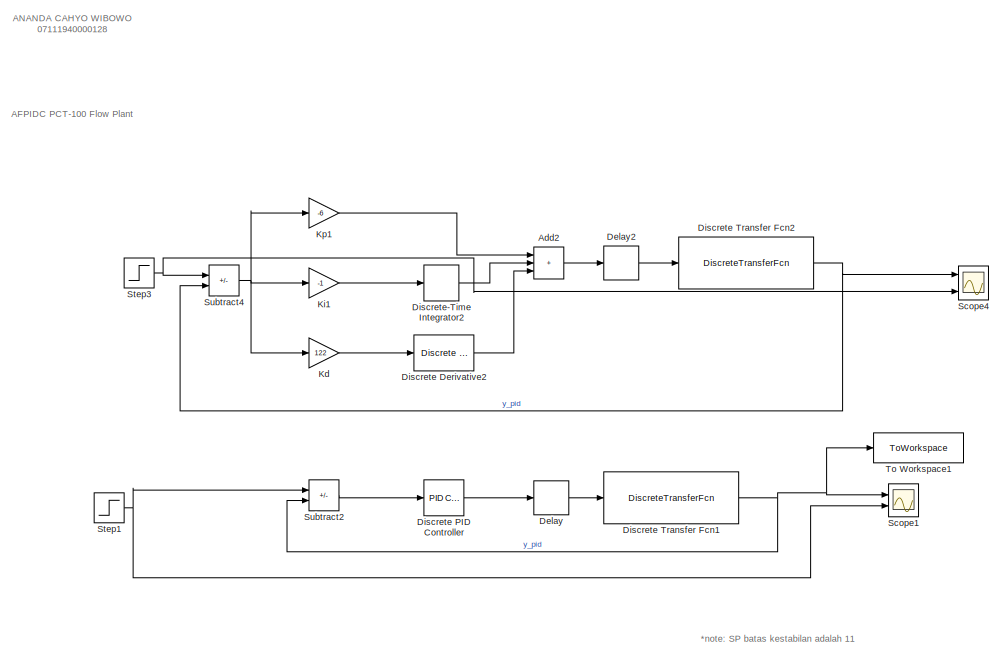
[diagram: root canvas - part 1/2, left side, full height]
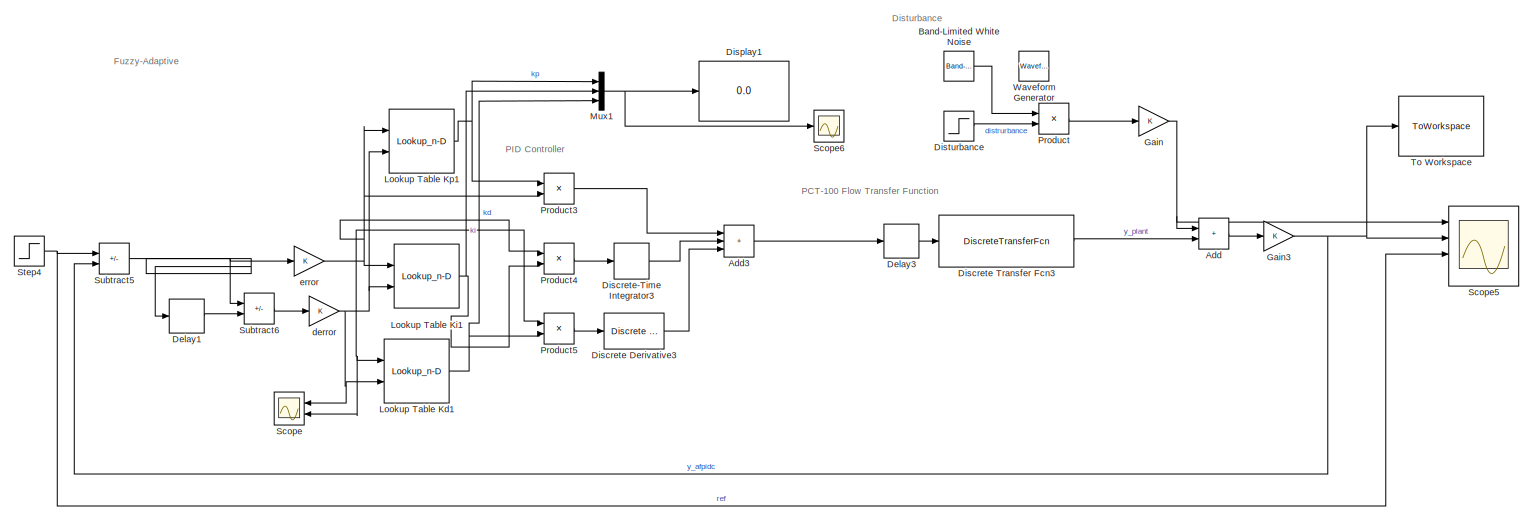
[diagram: root canvas - part 2/2, right side, full height]
MODEL slx_78fac7936a51
KIND model
CONFIG AbsTol = auto
CONFIG EnableMultiTasking = off
CONFIG FixedStep = auto
CONFIG MaxStep = auto
CONFIG MinStep = auto
CONFIG RelTol = 1e-3
CONFIG SampleTimeConstraint = Unconstrained
CONFIG SolverName = VariableStepAuto
CONFIG StartTime = 0.0
CONFIG StopTime = 15.1010
BLOCK [Sum] Add
  IconShape = rectangular
  Ports = [2, 1]
BLOCK [Sum] Add2
  IconShape = rectangular
  Inputs = +++
  Ports = [3, 1]
BLOCK [Sum] Add3
  IconShape = rectangular
  Inputs = +++
  Ports = [3, 1]
BLOCK [Reference] Band-Limited White Noise  REF=simulink/Sources/Band-Limited
White Noise
  Ports = [0, 1]
  SourceBlock = simulink/Sources/Band-Limited\nWhite Noise
  SourceProductBaseCode = SL
  SourceType = Band-Limited White Noise.
BLOCK [Delay] Delay
  DelayLength = 3
  InputPortMap = u0
  Ports = [1, 1]
  SampleTime = 0.1
BLOCK [Delay] Delay1
  DelayLength = 1
  InputPortMap = u0
  Ports = [1, 1]
  SampleTime = 0.1
BLOCK [Delay] Delay2
  DelayLength = 3
  InputPortMap = u0
  Ports = [1, 1]
  SampleTime = 0.1
BLOCK [Delay] Delay3
  DelayLength = 3
  InputPortMap = u0
  Ports = [1, 1]
  SampleTime = 0.1
BLOCK [Reference] Discrete Derivative2  REF=simulink/Discrete/Discrete Derivative
  Ports = [1, 1]
  SourceBlock = simulink/Discrete/Discrete Derivative
  SourceProductBaseCode = SL
  SourceType = Discrete Derivative
BLOCK [Reference] Discrete Derivative3  REF=simulink/Discrete/Discrete Derivative
  Ports = [1, 1]
  SourceBlock = simulink/Discrete/Discrete Derivative
  SourceProductBaseCode = SL
  SourceType = Discrete Derivative
BLOCK [Reference] Discrete PID Controller  REF=pid_lib/PID Controller
  Ports = [1, 1]
  SourceBlock = pid_lib/PID Controller
  SourceProductBaseCode = SL
  SourceType = PID 1dof
BLOCK [DiscreteTransferFcn] Discrete Transfer Fcn1
  Denominator = [1 -1.537 0.5996]
  InputPortMap = u0
  Numerator = [0.001733]
  Ports = [1, 1]
  SampleTime = 0.1
BLOCK [DiscreteTransferFcn] Discrete Transfer Fcn2
  Denominator = [1 -1.537 0.5996]
  InputPortMap = u0
  Numerator = [0.001733]
  Ports = [1, 1]
  SampleTime = 0.1
BLOCK [DiscreteTransferFcn] Discrete Transfer Fcn3
  Denominator = [1 -1.537 0.5996]
  InputPortMap = u0
  Numerator = [0.001733]
  Ports = [1, 1]
  SampleTime = 0.1
BLOCK [DiscreteIntegrator] Discrete-Time Integrator2
  ICPrevOutput = DiscIntNeverNeededParam
  ICPrevScaledInput = DiscIntNeverNeededParam
  InitialConditionSetting = Auto
  Ports = [1, 1]
  SampleTime = 0.1
BLOCK [DiscreteIntegrator] Discrete-Time Integrator3
  ICPrevOutput = DiscIntNeverNeededParam
  ICPrevScaledInput = DiscIntNeverNeededParam
  InitialConditionSetting = Auto
  Ports = [1, 1]
  SampleTime = 0.1
BLOCK [Display] Display1
  Decimation = 1
  Ports = [1]
BLOCK [Step] Disturbance
  After = 0.5
  SampleTime = 0
  Time = 0
BLOCK [Gain] Gain
BLOCK [Gain] Gain3
BLOCK [Gain] Kd
  Gain = 122
BLOCK [Gain] Ki1
  Gain = -1
BLOCK [Gain] Kp1
  Gain = -6
BLOCK [Lookup_n-D] Lookup Table Kd1
  BreakpointsForDimension1 = E_kd(1,:)
  BreakpointsForDimension2 = dE_kd(:,1)
  InputPortMap = u0,u1
  InternalRulePriority = Speed
  Ports = [2, 1]
  RndMeth = Simplest
  Table = U_kd
BLOCK [Lookup_n-D] Lookup Table Ki1
  BreakpointsForDimension1 = E_ki(1,:)
  BreakpointsForDimension2 = dE_ki(:,1)
  InputPortMap = u0,u1
  InternalRulePriority = Speed
  Ports = [2, 1]
  RndMeth = Simplest
  Table = U_ki
BLOCK [Lookup_n-D] Lookup Table Kp1
  BreakpointsForDimension1 = E_kp(1,:)
  BreakpointsForDimension2 = dE_kp(:,1)
  InputPortMap = u0,u1
  InternalRulePriority = Speed
  Ports = [2, 1]
  RndMeth = Simplest
  Table = U_kp
BLOCK [Mux] Mux1
  DisplayOption = bar
  Inputs = 3
  Ports = [3, 1]
BLOCK [Product] Product
  Ports = [2, 1]
BLOCK [Product] Product3
  Ports = [2, 1]
BLOCK [Product] Product4
  Ports = [2, 1]
BLOCK [Product] Product5
  Ports = [2, 1]
BLOCK [Scope] Scope
  Floating = off
  NumInputPorts = 2
  Ports = [2]
  ScopeSpecificationString = Simulink.scopes.TimeScopeBlockCfg('CurrentConfiguration', extmgr.ConfigurationSet(extmgr.Configuration('Core','General UI',true),extmgr.Configuration('Core','Source UI',true),extmgr.Configuration('Sources','WiredSimulink',true,'DataLoggingVariableName','ScopeData4'),extmgr.Configuration('Visuals','Time Domain',true,'SerializedDisplays',{struct('MinYLimReal','-0.72963','MaxYLimReal','2.53714','YLab...<+1414ch>
BLOCK [Scope] Scope1
  Floating = off
  NumInputPorts = 2
  Ports = [2]
  ScopeSpecificationString = Simulink.scopes.TimeScopeBlockCfg('CurrentConfiguration', extmgr.ConfigurationSet(extmgr.Configuration('Core','General UI',true),extmgr.Configuration('Core','Source UI',true),extmgr.Configuration('Sources','WiredSimulink',true,'DataLoggingVariableName','ScopeData1'),extmgr.Configuration('Visuals','Time Domain',true,'SerializedDisplays',{struct('MinYLimReal','-0.13754','MaxYLimReal','1.12639','YLab...<+1451ch>
BLOCK [Scope] Scope4
  Floating = off
  NumInputPorts = 3
  Ports = [3]
  ScopeSpecificationString = Simulink.scopes.TimeScopeBlockCfg('CurrentConfiguration', extmgr.ConfigurationSet(extmgr.Configuration('Core','General UI',true),extmgr.Configuration('Core','Source UI',true),extmgr.Configuration('Sources','WiredSimulink',true,'DataLoggingVariableName','ScopeData2'),extmgr.Configuration('Visuals','Time Domain',true,'SerializedDisplays',{struct('MinYLimReal','-53260443372265725403252237351766254553...<+3857ch>
BLOCK [Scope] Scope5
  Floating = off
  NumInputPorts = 4
  Ports = [4]
  ScopeSpecificationString = Simulink.scopes.TimeScopeBlockCfg('CurrentConfiguration', extmgr.ConfigurationSet(extmgr.Configuration('Core','General UI',true),extmgr.Configuration('Core','Source UI',true),extmgr.Configuration('Sources','WiredSimulink',true,'DataLoggingVariableName','ScopeData3'),extmgr.Configuration('Visuals','Time Domain',true,'SerializedDisplays',{struct('MinYLimReal','-0.30976','MaxYLimReal','1.22703','YLab...<+1429ch>
BLOCK [Scope] Scope6
  Floating = off
  NumInputPorts = 1
  Ports = [1]
  ScopeSpecificationString = Simulink.scopes.TimeScopeBlockCfg('CurrentConfiguration', extmgr.ConfigurationSet(extmgr.Configuration('Core','General UI',true),extmgr.Configuration('Core','Source UI',true),extmgr.Configuration('Sources','WiredSimulink',true),extmgr.Configuration('Visuals','Time Domain',true,'SerializedDisplays',{struct('MinYLimReal','-1.08775','MaxYLimReal','9.75975','YLabelReal','','MinYLimMag','0.00000','MaxY...<+1369ch>
BLOCK [Step] Step1
  SampleTime = 0.1
BLOCK [Step] Step3
  SampleTime = 0.1
BLOCK [Step] Step4
  SampleTime = 0.1
BLOCK [Sum] Subtract2
  IconShape = rectangular
  Inputs = +-
  Ports = [2, 1]
BLOCK [Sum] Subtract4
  IconShape = rectangular
  Inputs = +-
  Ports = [2, 1]
BLOCK [Sum] Subtract5
  IconShape = rectangular
  Inputs = +-
  Ports = [2, 1]
BLOCK [Sum] Subtract6
  IconShape = rectangular
  Inputs = +-
  Ports = [2, 1]
BLOCK [ToWorkspace] To Workspace
  FixptAsFi = on
  MaxDataPoints = inf
  Ports = [1]
  SampleTime = 0.1
  SaveFormat = Timeseries
  VariableName = AFPIDC
BLOCK [ToWorkspace] To Workspace1
  FixptAsFi = on
  MaxDataPoints = inf
  Ports = [1]
  SampleTime = 0.1
  SaveFormat = Timeseries
  VariableName = PID
BLOCK [Reference] Waveform Generator  REF=simulink/Sources/Waveform
Generator
  Ports = [0, 1]
  SourceBlock = simulink/Sources/Waveform\nGenerator
  SourceProductBaseCode = SL
  SourceType = WaveformGenerator
BLOCK [Gain] derror
BLOCK [Gain] error
ANNOTATION (root): *note: SP batas kestabilan adalah 11
ANNOTATION (root): ANANDA CAHYO WIBOWO 07111940000128
ANNOTATION (root): AFPIDC PCT-100 Flow Plant
ANNOTATION (root): Disturbance
ANNOTATION (root): Fuzzy-Adaptive
ANNOTATION (root): PCT-100 Flow Transfer Function
ANNOTATION (root): PID Controller
LINE Add2:1 -> Delay2:1
LINE Add3:1 -> Delay3:1
LINE Add:1 -> Gain3:1
LINE Band-Limited White Noise:1 -> Product:1
LINE Delay1:1 -> Subtract6:2
LINE Delay2:1 -> Discrete Transfer Fcn2:1
LINE Delay3:1 -> Discrete Transfer Fcn3:1
LINE Delay:1 -> Discrete Transfer Fcn1:1
LINE Discrete Derivative2:1 -> Add2:3
LINE Discrete Derivative3:1 -> Add3:3
LINE Discrete PID Controller:1 -> Delay:1
NET Discrete Transfer Fcn1:1 -> Scope1:1, Subtract2:2, To Workspace1:1
NET Discrete Transfer Fcn2:1 -> Scope4:1, Subtract4:2
LINE Discrete Transfer Fcn3:1 -> Add:2
LINE Discrete-Time Integrator2:1 -> Add2:2
LINE Discrete-Time Integrator3:1 -> Add3:2
LINE Disturbance:1 -> Product:2
NET Gain3:1 -> Scope5:2, Subtract5:2, To Workspace:1
NET Gain:1 -> Add:1, Scope5:1
LINE Kd:1 -> Discrete Derivative2:1
LINE Ki1:1 -> Discrete-Time Integrator2:1
LINE Kp1:1 -> Add2:1
NET Lookup Table Kd1:1 -> Mux1:3, Product5:2
NET Lookup Table Ki1:1 -> Mux1:2, Product4:2
NET Lookup Table Kp1:1 -> Mux1:1, Product3:1
NET Mux1:1 -> Display1:1, Scope6:1
LINE Product3:1 -> Add3:1
LINE Product4:1 -> Discrete-Time Integrator3:1
LINE Product5:1 -> Discrete Derivative3:1
LINE Product:1 -> Gain:1
NET Step1:1 -> Scope1:2, Subtract2:1
NET Step3:1 -> Scope4:3, Subtract4:1
NET Step4:1 -> Scope5:3, Subtract5:1
LINE Subtract2:1 -> Discrete PID Controller:1
NET Subtract4:1 -> Kd:1, Ki1:1, Kp1:1
NET Subtract5:1 -> Delay1:1, Subtract6:1, error:1
LINE Subtract6:1 -> derror:1
NET derror:1 -> Lookup Table Kd1:2, Lookup Table Ki1:2, Lookup Table Kp1:2, Scope:1
NET error:1 -> Lookup Table Kd1:1, Lookup Table Ki1:1, Lookup Table Kp1:1, Product3:2, Product4:1, Product5:1, Scope:2
note: NET lines group one-source signal fan-out (src -> all destinations, sorted); 1:1 wires keep LINE
